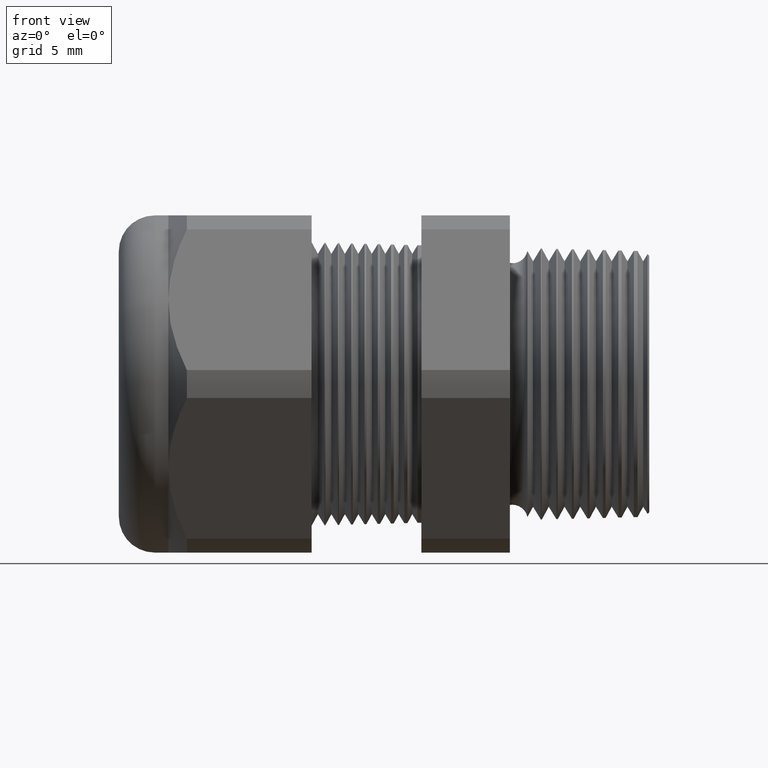
[diagram: clean part render]
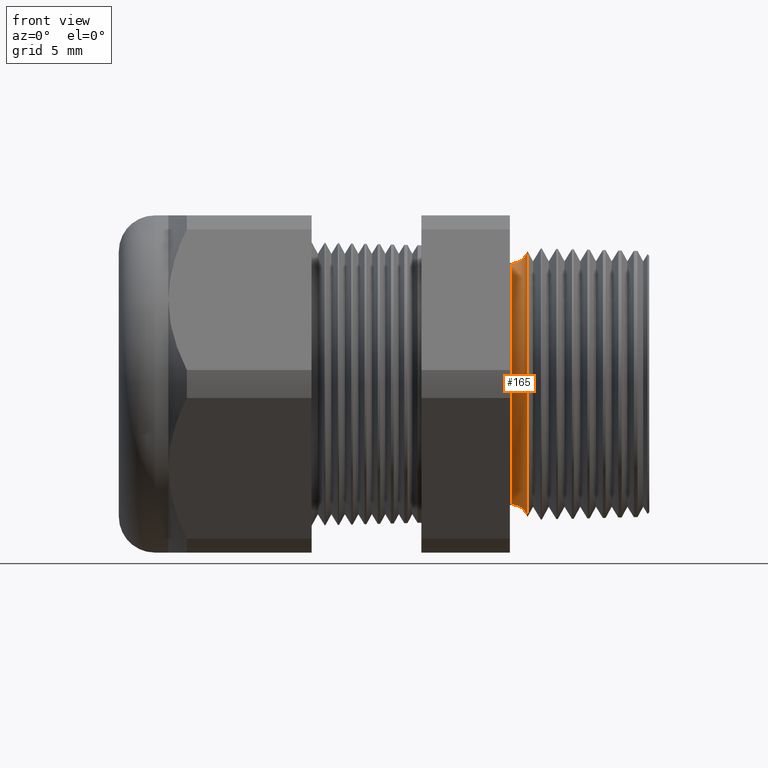
[diagram: same view with one face highlighted and labeled with its STEP entity id]
A machine part, front view. The second image highlights one B-rep face of the part: STEP entity #165.
In plain terms, the highlighted toroidal blend (fillet) surface has major radius 7.7078 mm and minor (blend) radius 0.889 mm.
Its self-contained STEP definition (entity closure, byte-faithful):
#46 = VERTEX_POINT ( 'NONE', #1580 ) ;
#58 = VERTEX_POINT ( 'NONE', #1561 ) ;
#60 = VERTEX_POINT ( 'NONE', #1560 ) ;
#61 = EDGE_CURVE ( 'NONE', #46, #60, #1559, .T. ) ;
#161 = EDGE_CURVE ( 'NONE', #162, #58, #1802, .T. ) ;
#162 = VERTEX_POINT ( 'NONE', #1798 ) ;
#165 = ADVANCED_FACE ( 'NONE', ( #1792 ), #1791, .F. ) ;
#166 = EDGE_LOOP ( 'NONE', ( #167, #168, #170, #171 ) ) ;
#167 = ORIENTED_EDGE ( 'NONE', *, *, #161, .T. ) ;
#168 = ORIENTED_EDGE ( 'NONE', *, *, #169, .T. ) ;
#169 = EDGE_CURVE ( 'NONE', #58, #60, #1785, .T. ) ;
#170 = ORIENTED_EDGE ( 'NONE', *, *, #61, .F. ) ;
#171 = ORIENTED_EDGE ( 'NONE', *, *, #172, .F. ) ;
#172 = EDGE_CURVE ( 'NONE', #162, #46, #1781, .T. ) ;
#1555 = DIRECTION ( 'NONE',  ( 0.0000000000000000000, 0.0000000000000000000, -1.000000000000000000 ) ) ;
#1556 = DIRECTION ( 'NONE',  ( 0.0000000000000000000, -1.000000000000000000, 0.0000000000000000000 ) ) ;
#1557 = CARTESIAN_POINT ( 'NONE',  ( -0.3049999999999999400, 0.0000000000000000000, -0.3034555137900915000 ) ) ;
#1558 = AXIS2_PLACEMENT_3D ( 'NONE', #1557, #1556, #1555 ) ;
#1559 = CIRCLE ( 'NONE', #1558, 0.03499999999999996900 ) ;
#1560 = CARTESIAN_POINT ( 'NONE',  ( -0.3049999999999999400, 0.0000000000000000000, -0.2684555137900915300 ) ) ;
#1561 = CARTESIAN_POINT ( 'NONE',  ( -0.3049999999999999400, 3.287631856764937300E-017, 0.2684555137900915300 ) ) ;
#1580 = CARTESIAN_POINT ( 'NONE',  ( -0.2708463023710465100, 3.622570804705299400E-017, -0.2958053544276990100 ) ) ;
#1741 = CARTESIAN_POINT ( 'NONE',  ( -0.3049999999999999400, 3.716258236466510600E-017, 0.3034555137900915000 ) ) ;
#1777 = DIRECTION ( 'NONE',  ( 0.0000000000000000000, 0.0000000000000000000, 1.000000000000000000 ) ) ;
#1778 = DIRECTION ( 'NONE',  ( 1.000000000000000000, 0.0000000000000000000, 0.0000000000000000000 ) ) ;
#1779 = CARTESIAN_POINT ( 'NONE',  ( -0.2708463023710465100, 0.0000000000000000000, 0.0000000000000000000 ) ) ;
#1780 = AXIS2_PLACEMENT_3D ( 'NONE', #1779, #1778, #1777 ) ;
#1781 = CIRCLE ( 'NONE', #1780, 0.2958053544276990100 ) ;
#1782 = DIRECTION ( 'NONE',  ( 0.0000000000000000000, 0.0000000000000000000, -1.000000000000000000 ) ) ;
#1783 = DIRECTION ( 'NONE',  ( 1.000000000000000000, 0.0000000000000000000, 0.0000000000000000000 ) ) ;
#1784 = AXIS2_PLACEMENT_3D ( 'NONE', #1790, #1783, #1782 ) ;
#1785 = CIRCLE ( 'NONE', #1784, 0.2684555137900915300 ) ;
#1786 = DIRECTION ( 'NONE',  ( 0.0000000000000000000, 0.0000000000000000000, -1.000000000000000000 ) ) ;
#1787 = DIRECTION ( 'NONE',  ( 1.000000000000000000, 0.0000000000000000000, 0.0000000000000000000 ) ) ;
#1788 = CARTESIAN_POINT ( 'NONE',  ( -0.3049999999999999400, 0.0000000000000000000, 0.0000000000000000000 ) ) ;
#1789 = AXIS2_PLACEMENT_3D ( 'NONE', #1788, #1787, #1786 ) ;
#1790 = CARTESIAN_POINT ( 'NONE',  ( -0.3049999999999999400, 0.0000000000000000000, 0.0000000000000000000 ) ) ;
#1791 = TOROIDAL_SURFACE ( 'NONE', #1789, 0.3034555137900915000, 0.03499999999999994800 ) ;
#1792 = FACE_OUTER_BOUND ( 'NONE', #166, .T. ) ;
#1798 = CARTESIAN_POINT ( 'NONE',  ( -0.2708463023710465100, 0.0000000000000000000, 0.2958053544276990100 ) ) ;
#1799 = DIRECTION ( 'NONE',  ( 0.0000000000000000000, 1.224646799147352700E-016, 1.000000000000000000 ) ) ;
#1800 = DIRECTION ( 'NONE',  ( 0.0000000000000000000, 1.000000000000000000, -1.224646799147353200E-016 ) ) ;
#1801 = AXIS2_PLACEMENT_3D ( 'NONE', #1741, #1800, #1799 ) ;
#1802 = CIRCLE ( 'NONE', #1801, 0.03499999999999996900 ) ;